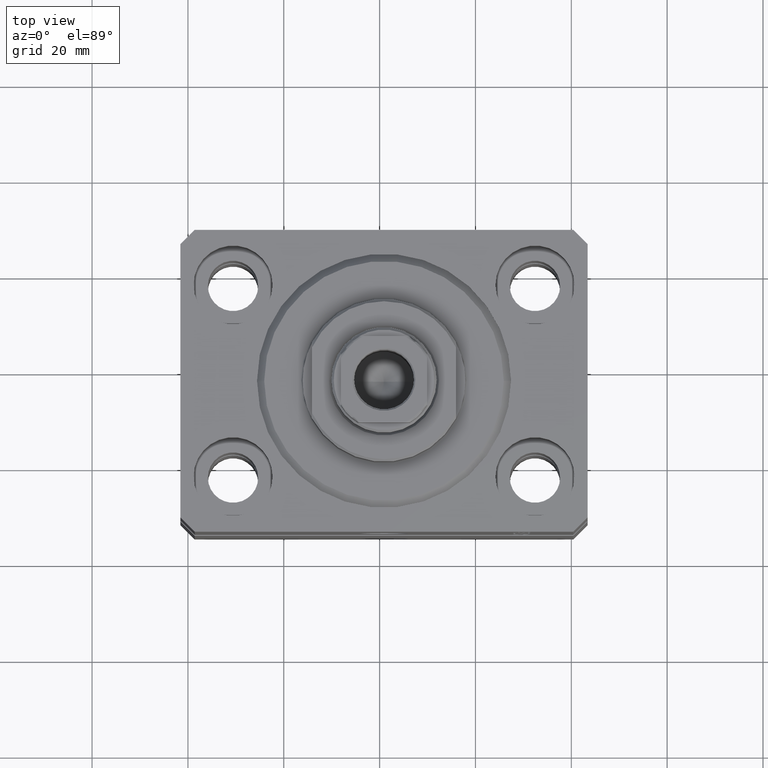
[diagram: clean part render]
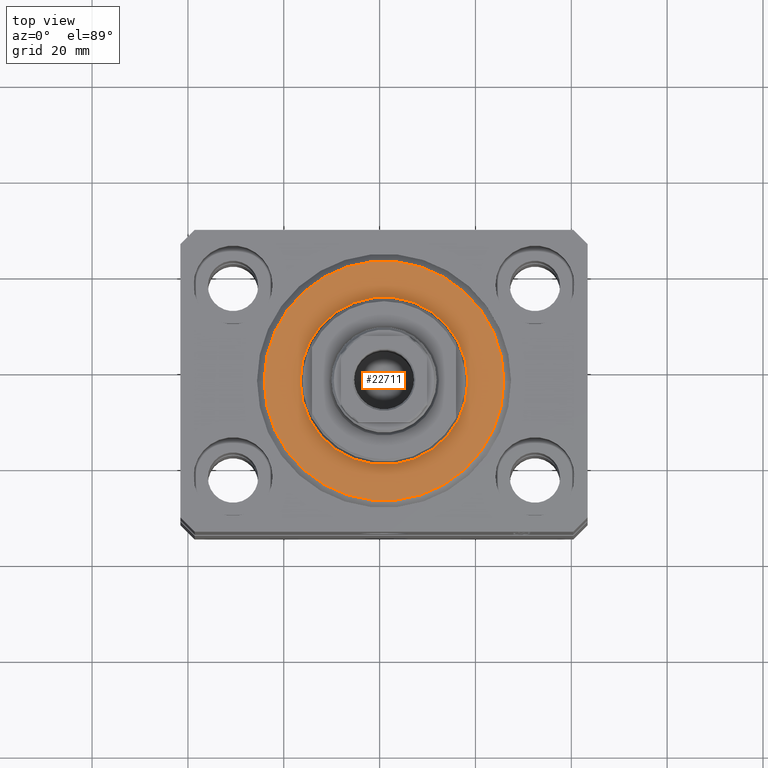
[diagram: same view with one face highlighted and labeled with its STEP entity id]
A machine part, top view. The second image highlights one B-rep face of the part: STEP entity #22711.
In plain terms, the highlighted planar face has unit normal (0, 0, -1).
Its self-contained STEP definition (entity closure, byte-faithful):
#2279 = DIRECTION ( 'NONE',  ( 1.000000000000000000, 0.000000000000000000, 0.000000000000000000 ) ) ;
#2687 = CARTESIAN_POINT ( 'NONE',  ( 0.000000000000000000, 0.000000000000000000, 0.000000000000000000 ) ) ;
#3138 = DIRECTION ( 'NONE',  ( 1.000000000000000000, 0.000000000000000000, 0.000000000000000000 ) ) ;
#5217 = DIRECTION ( 'NONE',  ( -0.000000000000000000, -0.000000000000000000, -1.000000000000000000 ) ) ;
#5343 = CARTESIAN_POINT ( 'NONE',  ( -17.50000000000000000, 2.143131898507868643E-15, 2.168404344971008868E-16 ) ) ;
#5354 = AXIS2_PLACEMENT_3D ( 'NONE', #2687, #40987, #3138 ) ;
#5749 = ORIENTED_EDGE ( 'NONE', *, *, #7948, .T. ) ;
#7461 = VERTEX_POINT ( 'NONE', #10528 ) ;
#7948 = EDGE_CURVE ( 'NONE', #16203, #7461, #16560, .T. ) ;
#7980 = CIRCLE ( 'NONE', #12339, 17.50000000000000000 ) ;
#8077 = DIRECTION ( 'NONE',  ( 1.000000000000000000, 0.000000000000000000, 0.000000000000000000 ) ) ;
#10528 = CARTESIAN_POINT ( 'NONE',  ( -24.99999999999998224, 3.153465507804433615E-15, 0.000000000000000000 ) ) ;
#11892 = EDGE_LOOP ( 'NONE', ( #17813, #14607 ) ) ;
#12339 = AXIS2_PLACEMENT_3D ( 'NONE', #16129, #29964, #26556 ) ;
#14607 = ORIENTED_EDGE ( 'NONE', *, *, #23460, .T. ) ;
#16129 = CARTESIAN_POINT ( 'NONE',  ( 0.000000000000000000, 0.000000000000000000, 0.000000000000000000 ) ) ;
#16203 = VERTEX_POINT ( 'NONE', #29732 ) ;
#16553 = FACE_OUTER_BOUND ( 'NONE', #18926, .T. ) ;
#16560 = CIRCLE ( 'NONE', #30419, 24.99999999999998224 ) ;
#17813 = ORIENTED_EDGE ( 'NONE', *, *, #20899, .T. ) ;
#18926 = EDGE_LOOP ( 'NONE', ( #5749, #27549 ) ) ;
#20178 = FACE_BOUND ( 'NONE', #11892, .T. ) ;
#20899 = EDGE_CURVE ( 'NONE', #44524, #33491, #39743, .T. ) ;
#22711 = ADVANCED_FACE ( 'NONE', ( #20178, #16553 ), #37192, .F. ) ;
#22769 = CIRCLE ( 'NONE', #5354, 24.99999999999998224 ) ;
#23460 = EDGE_CURVE ( 'NONE', #33491, #44524, #7980, .T. ) ;
#24635 = AXIS2_PLACEMENT_3D ( 'NONE', #44428, #30840, #30389 ) ;
#26313 = CARTESIAN_POINT ( 'NONE',  ( 0.000000000000000000, 0.000000000000000000, 0.000000000000000000 ) ) ;
#26556 = DIRECTION ( 'NONE',  ( 1.000000000000000000, 0.000000000000000000, 0.000000000000000000 ) ) ;
#27549 = ORIENTED_EDGE ( 'NONE', *, *, #42242, .T. ) ;
#29203 = CARTESIAN_POINT ( 'NONE',  ( 17.50000000000000000, 0.000000000000000000, 2.168404344971008868E-16 ) ) ;
#29732 = CARTESIAN_POINT ( 'NONE',  ( 24.99999999999998224, 0.000000000000000000, 0.000000000000000000 ) ) ;
#29964 = DIRECTION ( 'NONE',  ( 0.000000000000000000, 0.000000000000000000, 1.000000000000000000 ) ) ;
#30389 = DIRECTION ( 'NONE',  ( 1.000000000000000000, 0.000000000000000000, -0.000000000000000000 ) ) ;
#30419 = AXIS2_PLACEMENT_3D ( 'NONE', #26313, #5217, #2279 ) ;
#30840 = DIRECTION ( 'NONE',  ( 0.000000000000000000, 0.000000000000000000, 1.000000000000000000 ) ) ;
#33491 = VERTEX_POINT ( 'NONE', #5343 ) ;
#35294 = CARTESIAN_POINT ( 'NONE',  ( 0.000000000000000000, 0.000000000000000000, 0.000000000000000000 ) ) ;
#37192 = PLANE ( 'NONE',  #24635 ) ;
#39743 = CIRCLE ( 'NONE', #43366, 17.50000000000000000 ) ;
#40987 = DIRECTION ( 'NONE',  ( -0.000000000000000000, -0.000000000000000000, -1.000000000000000000 ) ) ;
#41849 = DIRECTION ( 'NONE',  ( 0.000000000000000000, 0.000000000000000000, 1.000000000000000000 ) ) ;
#42242 = EDGE_CURVE ( 'NONE', #7461, #16203, #22769, .T. ) ;
#43366 = AXIS2_PLACEMENT_3D ( 'NONE', #35294, #41849, #8077 ) ;
#44428 = CARTESIAN_POINT ( 'NONE',  ( 0.000000000000000000, 0.000000000000000000, 0.000000000000000000 ) ) ;
#44524 = VERTEX_POINT ( 'NONE', #29203 ) ;